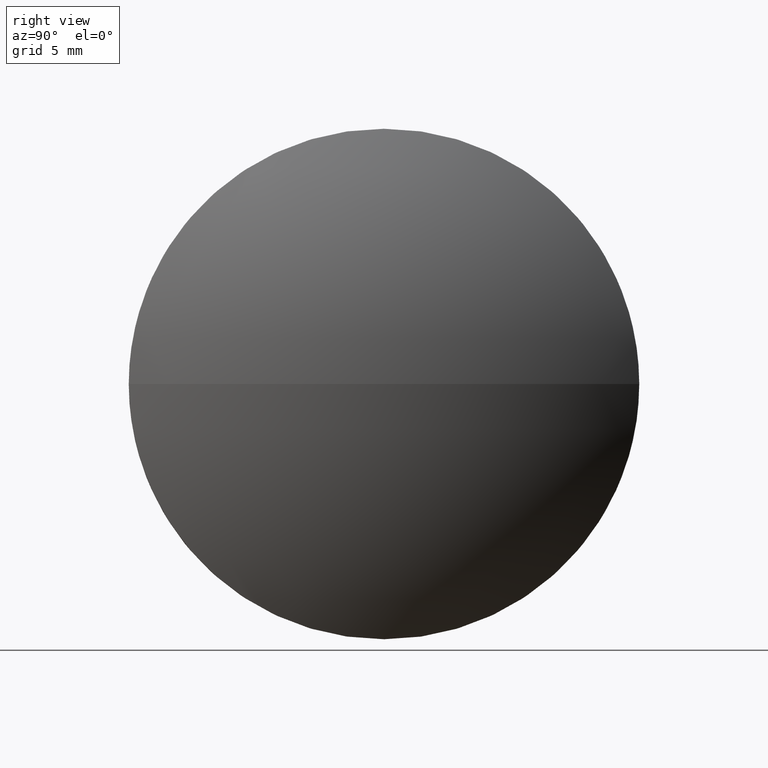
[diagram: clean part render]
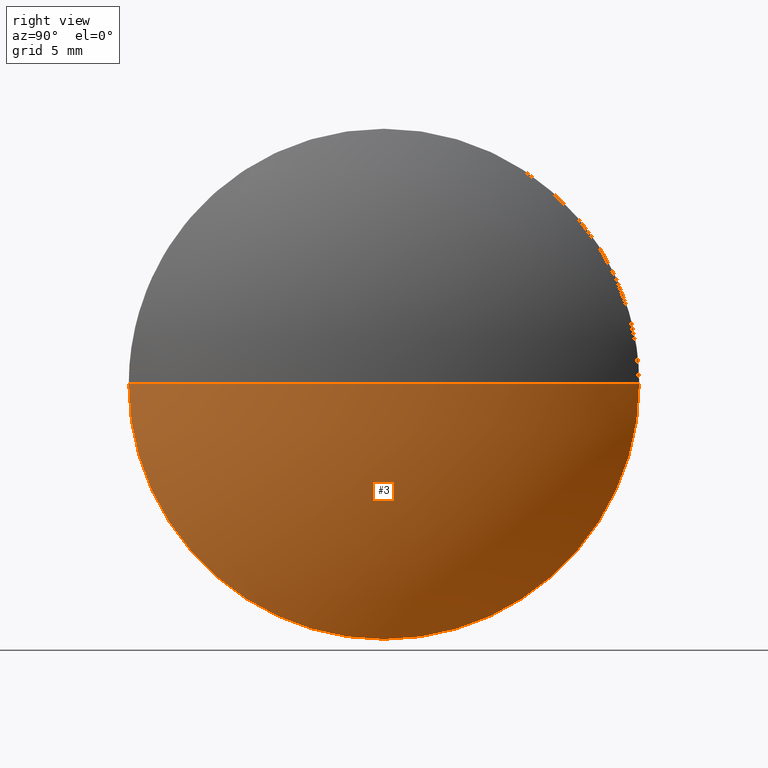
[diagram: same view with one face highlighted and labeled with its STEP entity id]
A machine part, right view. The second image highlights one B-rep face of the part: STEP entity #3.
In plain terms, the highlighted spherical surface has radius 22.9213 mm.
Its self-contained STEP definition (entity closure, byte-faithful):
#3 = ADVANCED_FACE ( 'NONE', ( #30 ), #106, .T. ) ;
#5 = DIRECTION ( 'NONE',  ( 0.0000000000000000000, 0.0000000000000000000, 1.000000000000000000 ) ) ;
#30 = FACE_OUTER_BOUND ( 'NONE', #43, .T. ) ;
#41 = ORIENTED_EDGE ( 'NONE', *, *, #72, .F. ) ;
#43 = EDGE_LOOP ( 'NONE', ( #167, #182, #41, #132 ) ) ;
#44 = CARTESIAN_POINT ( 'NONE',  ( 454.2168390391796000, 125.5256010425788700, 0.0000000000000000000 ) ) ;
#46 = DIRECTION ( 'NONE',  ( -0.0000000000000000000, 0.0000000000000000000, -1.000000000000000000 ) ) ;
#47 = CARTESIAN_POINT ( 'NONE',  ( 435.1355369558463100, 125.5256010425788700, 0.0000000000000000000 ) ) ;
#49 = VERTEX_POINT ( 'NONE', #160 ) ;
#56 = AXIS2_PLACEMENT_3D ( 'NONE', #65, #110, #159 ) ;
#58 = EDGE_CURVE ( 'NONE', #62, #94, #64, .T. ) ;
#59 = EDGE_CURVE ( 'NONE', #62, #49, #141, .T. ) ;
#61 = VERTEX_POINT ( 'NONE', #131 ) ;
#62 = VERTEX_POINT ( 'NONE', #180 ) ;
#63 = DIRECTION ( 'NONE',  ( 0.0000000000000000000, 1.000000000000000000, 0.0000000000000000000 ) ) ;
#64 = CIRCLE ( 'NONE', #56, 22.92130208333331600 ) ;
#65 = CARTESIAN_POINT ( 'NONE',  ( 435.1355369558463100, 125.5256010425788700, 0.0000000000000000000 ) ) ;
#67 = AXIS2_PLACEMENT_3D ( 'NONE', #146, #116, #149 ) ;
#72 = EDGE_CURVE ( 'NONE', #61, #94, #81, .T. ) ;
#80 = DIRECTION ( 'NONE',  ( -1.000000000000000000, -0.0000000000000000000, -0.0000000000000000000 ) ) ;
#81 = CIRCLE ( 'NONE', #138, 12.70000000000001700 ) ;
#94 = VERTEX_POINT ( 'NONE', #111 ) ;
#106 = SPHERICAL_SURFACE ( 'NONE', #120, 22.92130208333331600 ) ;
#110 = DIRECTION ( 'NONE',  ( 0.0000000000000000000, 1.224646799147353200E-016, -1.000000000000000000 ) ) ;
#111 = CARTESIAN_POINT ( 'NONE',  ( 454.2168390391796000, 112.8256010425788500, -1.555301434917140200E-015 ) ) ;
#115 = EDGE_CURVE ( 'NONE', #49, #61, #161, .T. ) ;
#116 = DIRECTION ( 'NONE',  ( -1.000000000000000000, -0.0000000000000000000, -0.0000000000000000000 ) ) ;
#120 = AXIS2_PLACEMENT_3D ( 'NONE', #47, #46, #63 ) ;
#125 = AXIS2_PLACEMENT_3D ( 'NONE', #129, #128, #181 ) ;
#128 = DIRECTION ( 'NONE',  ( -0.0000000000000000000, 0.0000000000000000000, 1.000000000000000000 ) ) ;
#129 = CARTESIAN_POINT ( 'NONE',  ( 435.1355369558463100, 125.5256010425788700, 0.0000000000000000000 ) ) ;
#131 = CARTESIAN_POINT ( 'NONE',  ( 454.2168390391796000, 125.5256010425788700, -12.70000000000001700 ) ) ;
#132 = ORIENTED_EDGE ( 'NONE', *, *, #115, .F. ) ;
#138 = AXIS2_PLACEMENT_3D ( 'NONE', #44, #80, #5 ) ;
#141 = CIRCLE ( 'NONE', #125, 22.92130208333331600 ) ;
#146 = CARTESIAN_POINT ( 'NONE',  ( 454.2168390391796000, 125.5256010425788700, 0.0000000000000000000 ) ) ;
#149 = DIRECTION ( 'NONE',  ( 0.0000000000000000000, 0.0000000000000000000, 1.000000000000000000 ) ) ;
#159 = DIRECTION ( 'NONE',  ( 0.0000000000000000000, 1.000000000000000000, 1.224646799147353200E-016 ) ) ;
#160 = CARTESIAN_POINT ( 'NONE',  ( 454.2168390391796000, 138.2256010425788900, 0.0000000000000000000 ) ) ;
#161 = CIRCLE ( 'NONE', #67, 12.70000000000001700 ) ;
#167 = ORIENTED_EDGE ( 'NONE', *, *, #59, .F. ) ;
#180 = CARTESIAN_POINT ( 'NONE',  ( 458.0568390391795800, 125.5256010425788700, 0.0000000000000000000 ) ) ;
#181 = DIRECTION ( 'NONE',  ( 1.000000000000000000, 0.0000000000000000000, 0.0000000000000000000 ) ) ;
#182 = ORIENTED_EDGE ( 'NONE', *, *, #58, .T. ) ;